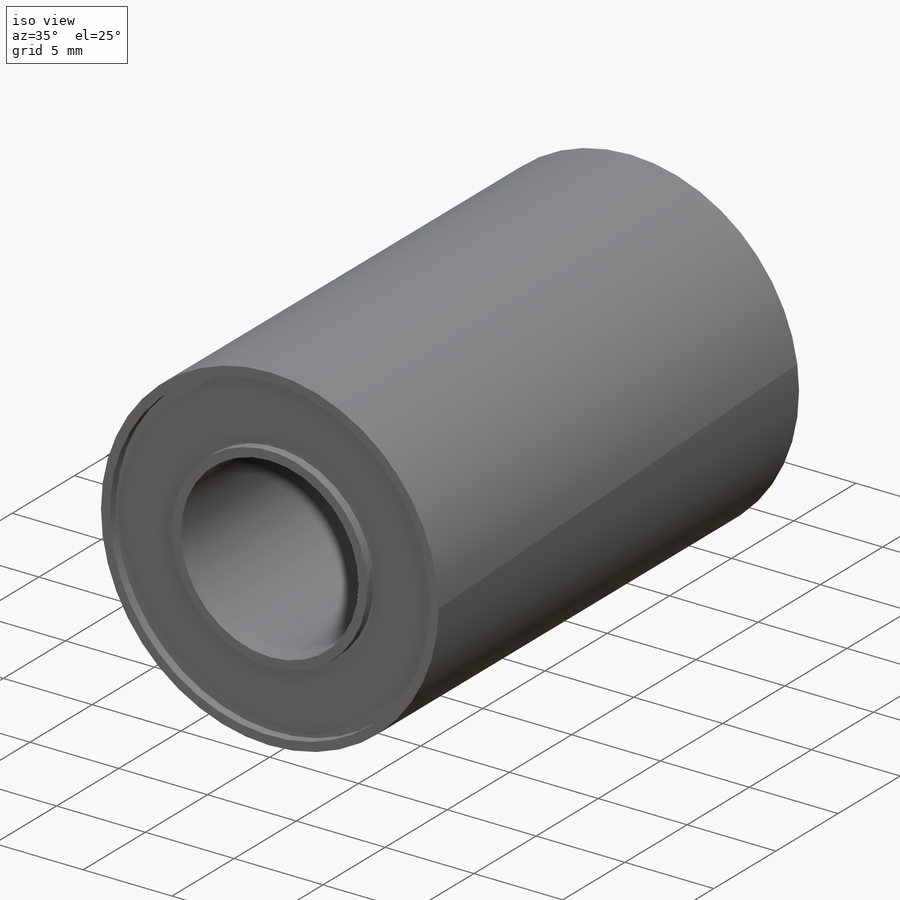
[diagram: iso view]
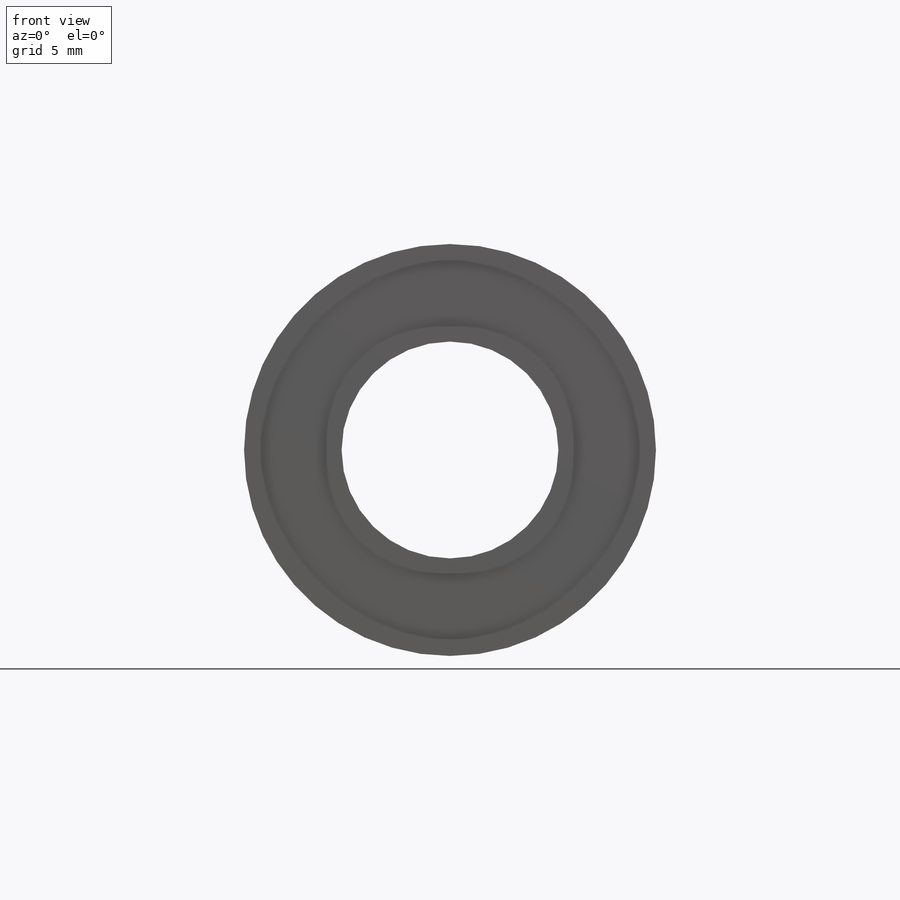
[diagram: front view]
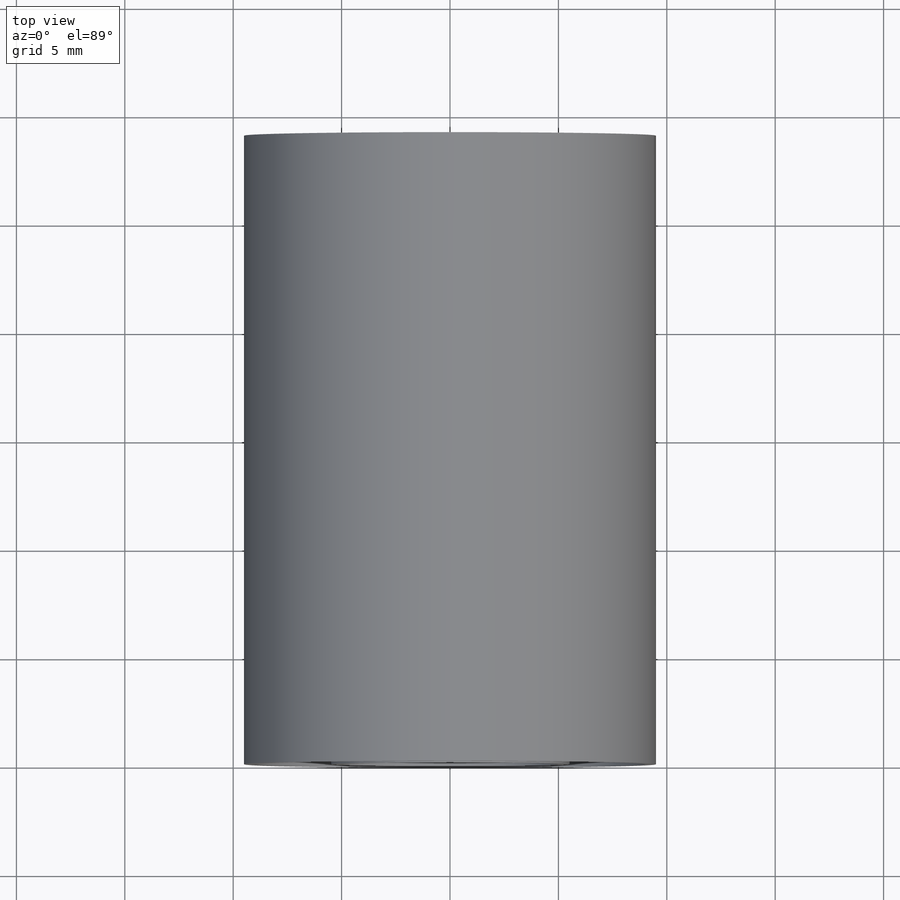
[diagram: top view]
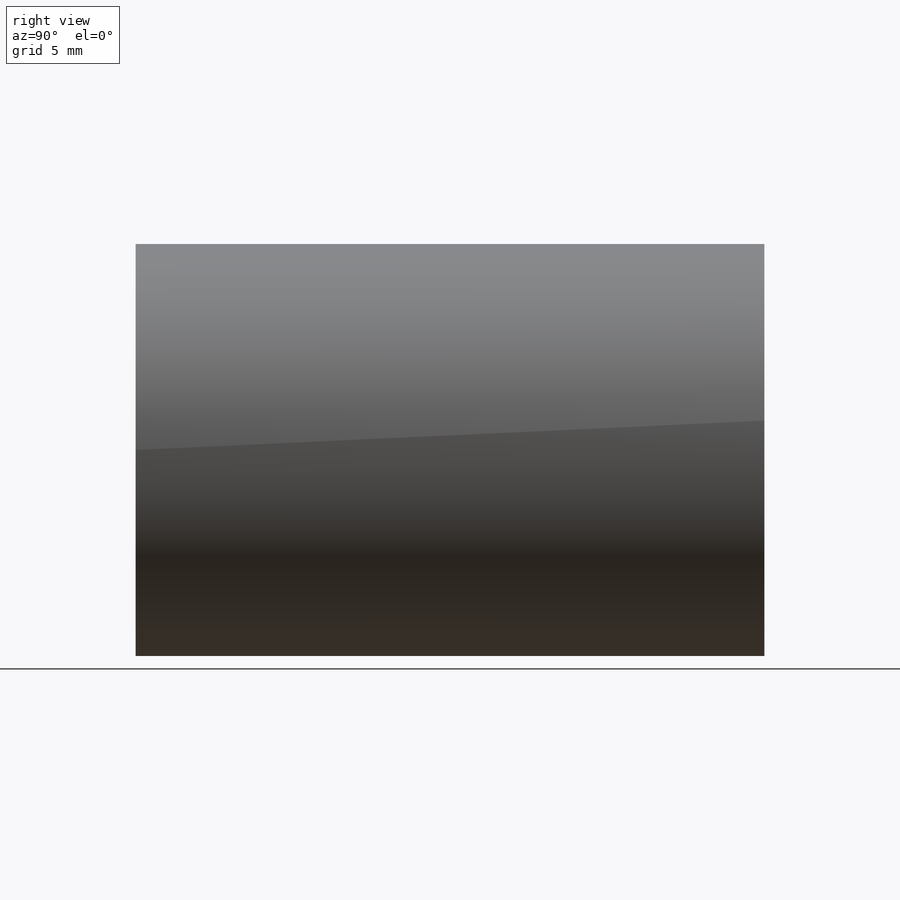
[diagram: right view]
SOLIDWORKS PART (.sldprt)
format: sldprt  version: not decoded by parser v0  size: 175,616 bytes
history: native  units: mm
features: plane x3, sketch x3, cut_extrude x2, material x1, extrude x1 (+10 scaffold rows collapsed)
feature tree (20):
  scaffold x10  (default folders/planes/origin — collapsed)
  material  "Material <nicht angegeben>"
  plane  "Ebene vorne"
  plane  "Ebene oben"
  plane  "Ebene rechts"
  sketch  "Skizze1"  dims[D1=10.0mm]
  extrude  "Aufsatz-Linear austragen1"  Depth=29mm
  sketch  "Skizze2"  dims[D1=~9.077494mm]
  cut_extrude  "Schnitt-Linear austragen1"  Depth=0.5mm
  sketch  "Skizze3"  dims[D1=~8.815778mm]
  cut_extrude  "Schnitt-Linear austragen2"  Depth=0.5mm
decode coverage: 6 of 6 modeling features carry decoded parameters
note: ~ marks probable driven/reference dimensions
note: suppression state not decoded; provenance and decode notes live in map.json
